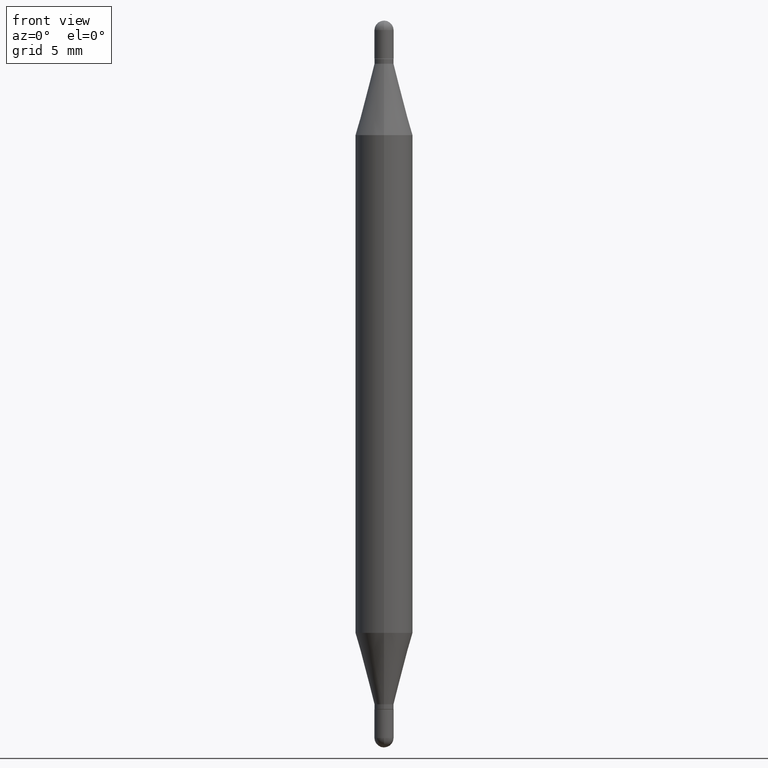
[diagram: clean part render]
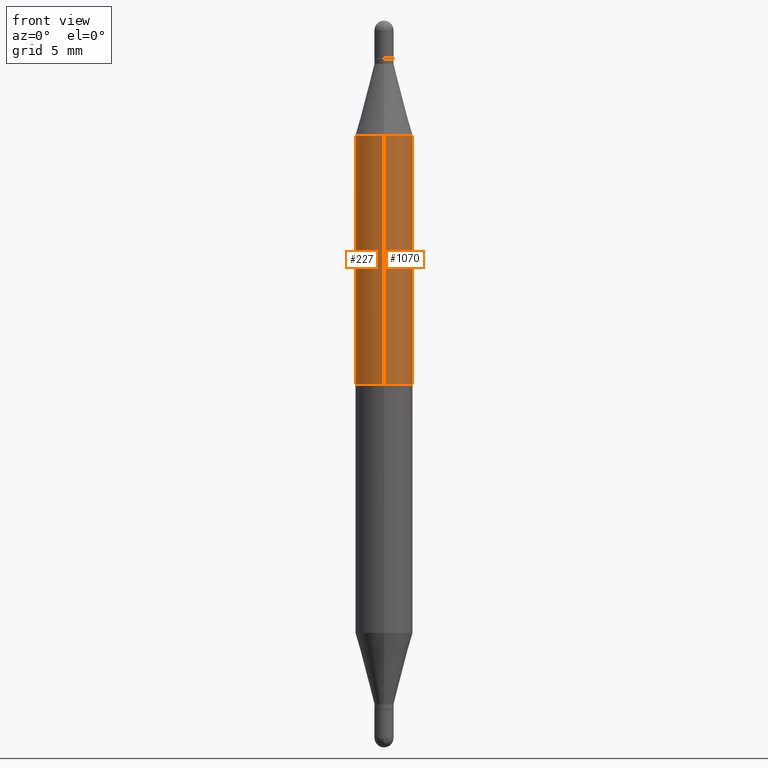
[diagram: same view with one multi-face feature highlighted, each face labeled with its STEP entity id]
A machine part, front view. The highlighted faces form ONE feature: a constant-radius fillet chain: 2 tangent blend faces with common blend radius 1.4999 mm. The faces share edges in the B-rep.
Their STEP definitions:
[1] entity #227 (Cylinder):
#8 = ORIENTED_EDGE ( 'NONE', *, *, #261, .F. ) ;
#16 = VERTEX_POINT ( 'NONE', #981 ) ;
#105 = EDGE_CURVE ( 'NONE', #16, #559, #532, .T. ) ;
#152 = CARTESIAN_POINT ( 'NONE',  ( 4.051124067684336187E-16, 0.05904999999999741012, -0.7480500000000002148 ) ) ;
#186 = CARTESIAN_POINT ( 'NONE',  ( 4.051124067684398803E-16, 0.05904999999999917953, -0.2358561992778360206 ) ) ;
#212 = DIRECTION ( 'NONE',  ( -6.982962677686265922E-15, -1.000000000000000000, 4.626330217890367758E-15 ) ) ;
#227 = ADVANCED_FACE ( 'NONE', ( #741 ), #1089, .T. ) ;
#229 = CARTESIAN_POINT ( 'NONE',  ( 3.090770025373766700E-29, -8.168445195885310899E-16, -0.2358561992778358263 ) ) ;
#261 = EDGE_CURVE ( 'NONE', #686, #514, #591, .T. ) ;
#313 = DIRECTION ( 'NONE',  ( -6.982962677686265922E-15, -1.000000000000000000, 3.469747663417777002E-15 ) ) ;
#321 = CARTESIAN_POINT ( 'NONE',  ( 0.000000000000000000, -5.214728217544379106E-15, -1.496099999999999985 ) ) ;
#336 = EDGE_CURVE ( 'NONE', #686, #559, #1112, .T. ) ;
#340 = CARTESIAN_POINT ( 'NONE',  ( 4.051124067684090161E-16, 0.05904999999999480109, -1.496100000000000207 ) ) ;
#343 = DIRECTION ( 'NONE',  ( -2.452517539544845457E-29, -3.489708654337918810E-15, -1.000000000000000000 ) ) ;
#358 = AXIS2_PLACEMENT_3D ( 'NONE', #836, #403, #814 ) ;
#385 = DIRECTION ( 'NONE',  ( -2.452517539544845457E-29, -3.489708654337919205E-15, -1.000000000000000000 ) ) ;
#403 = DIRECTION ( 'NONE',  ( -0.000000000000000000, -3.485547902910486918E-15, -1.000000000000000000 ) ) ;
#406 = CARTESIAN_POINT ( 'NONE',  ( -4.123439461173430699E-16, -0.05905000000000081711, -0.2358561992778356042 ) ) ;
#451 = ORIENTED_EDGE ( 'NONE', *, *, #509, .F. ) ;
#509 = EDGE_CURVE ( 'NONE', #514, #16, #896, .T. ) ;
#514 = VERTEX_POINT ( 'NONE', #406 ) ;
#532 = CIRCLE ( 'NONE', #358, 0.05905000000000001914 ) ;
#536 = ORIENTED_EDGE ( 'NONE', *, *, #105, .F. ) ;
#559 = VERTEX_POINT ( 'NONE', #152 ) ;
#591 = CIRCLE ( 'NONE', #645, 0.05905000000000000526 ) ;
#617 = ORIENTED_EDGE ( 'NONE', *, *, #336, .T. ) ;
#645 = AXIS2_PLACEMENT_3D ( 'NONE', #229, #731, #313 ) ;
#666 = DIRECTION ( 'NONE',  ( -2.452517539544845457E-29, -3.489708654337918810E-15, -1.000000000000000000 ) ) ;
#686 = VERTEX_POINT ( 'NONE', #186 ) ;
#731 = DIRECTION ( 'NONE',  ( 2.452517539544845457E-29, 3.489708654337919205E-15, 1.000000000000000000 ) ) ;
#738 = VECTOR ( 'NONE', #343, 39.37007874015748143 ) ;
#741 = FACE_OUTER_BOUND ( 'NONE', #799, .T. ) ;
#799 = EDGE_LOOP ( 'NONE', ( #8, #617, #536, #451 ) ) ;
#814 = DIRECTION ( 'NONE',  ( 0.000000000000000000, 1.000000000000000000, -4.626330217890367758E-15 ) ) ;
#836 = CARTESIAN_POINT ( 'NONE',  ( 1.834605745456521604E-29, -2.604251658666898988E-15, -0.7480499999999999927 ) ) ;
#838 = CARTESIAN_POINT ( 'NONE',  ( -4.123439461173741313E-16, -0.05905000000000523025, -1.496099999999999541 ) ) ;
#896 = LINE ( 'NONE', #838, #957 ) ;
#957 = VECTOR ( 'NONE', #666, 39.37007874015748143 ) ;
#981 = CARTESIAN_POINT ( 'NONE',  ( -4.123439461173557410E-16, -0.05905000000000261429, -0.7480499999999996597 ) ) ;
#1085 = AXIS2_PLACEMENT_3D ( 'NONE', #321, #385, #212 ) ;
#1089 = CYLINDRICAL_SURFACE ( 'NONE', #1085, 0.05905000000000001914 ) ;
#1112 = LINE ( 'NONE', #340, #738 ) ;
[2] entity #1070 (Cylinder):
#5 = AXIS2_PLACEMENT_3D ( 'NONE', #135, #141, #638 ) ;
#16 = VERTEX_POINT ( 'NONE', #981 ) ;
#26 = FACE_OUTER_BOUND ( 'NONE', #983, .T. ) ;
#30 = CYLINDRICAL_SURFACE ( 'NONE', #647, 0.05905000000000001914 ) ;
#135 = CARTESIAN_POINT ( 'NONE',  ( 3.090770025373766700E-29, -8.168445195885310899E-16, -0.2358561992778358263 ) ) ;
#141 = DIRECTION ( 'NONE',  ( 2.452517539544845457E-29, 3.489708654337919205E-15, 1.000000000000000000 ) ) ;
#152 = CARTESIAN_POINT ( 'NONE',  ( 4.051124067684336187E-16, 0.05904999999999741012, -0.7480500000000002148 ) ) ;
#181 = ORIENTED_EDGE ( 'NONE', *, *, #336, .F. ) ;
#186 = CARTESIAN_POINT ( 'NONE',  ( 4.051124067684398803E-16, 0.05904999999999917953, -0.2358561992778360206 ) ) ;
#228 = CIRCLE ( 'NONE', #302, 0.05905000000000001914 ) ;
#302 = AXIS2_PLACEMENT_3D ( 'NONE', #1024, #949, #583 ) ;
#336 = EDGE_CURVE ( 'NONE', #686, #559, #1112, .T. ) ;
#340 = CARTESIAN_POINT ( 'NONE',  ( 4.051124067684090161E-16, 0.05904999999999480109, -1.496100000000000207 ) ) ;
#343 = DIRECTION ( 'NONE',  ( -2.452517539544845457E-29, -3.489708654337918810E-15, -1.000000000000000000 ) ) ;
#367 = CARTESIAN_POINT ( 'NONE',  ( 0.000000000000000000, -5.214728217544379106E-15, -1.496099999999999985 ) ) ;
#406 = CARTESIAN_POINT ( 'NONE',  ( -4.123439461173430699E-16, -0.05905000000000081711, -0.2358561992778356042 ) ) ;
#483 = ORIENTED_EDGE ( 'NONE', *, *, #947, .F. ) ;
#484 = CIRCLE ( 'NONE', #5, 0.05905000000000000526 ) ;
#509 = EDGE_CURVE ( 'NONE', #514, #16, #896, .T. ) ;
#514 = VERTEX_POINT ( 'NONE', #406 ) ;
#542 = ORIENTED_EDGE ( 'NONE', *, *, #614, .F. ) ;
#559 = VERTEX_POINT ( 'NONE', #152 ) ;
#583 = DIRECTION ( 'NONE',  ( 0.000000000000000000, 1.000000000000000000, -4.626330217890367758E-15 ) ) ;
#614 = EDGE_CURVE ( 'NONE', #559, #16, #228, .T. ) ;
#638 = DIRECTION ( 'NONE',  ( -6.982962677686265922E-15, -1.000000000000000000, 3.469747663417777002E-15 ) ) ;
#647 = AXIS2_PLACEMENT_3D ( 'NONE', #367, #712, #1063 ) ;
#666 = DIRECTION ( 'NONE',  ( -2.452517539544845457E-29, -3.489708654337918810E-15, -1.000000000000000000 ) ) ;
#686 = VERTEX_POINT ( 'NONE', #186 ) ;
#712 = DIRECTION ( 'NONE',  ( -2.452517539544845457E-29, -3.489708654337919205E-15, -1.000000000000000000 ) ) ;
#738 = VECTOR ( 'NONE', #343, 39.37007874015748143 ) ;
#753 = ORIENTED_EDGE ( 'NONE', *, *, #509, .T. ) ;
#838 = CARTESIAN_POINT ( 'NONE',  ( -4.123439461173741313E-16, -0.05905000000000523025, -1.496099999999999541 ) ) ;
#896 = LINE ( 'NONE', #838, #957 ) ;
#947 = EDGE_CURVE ( 'NONE', #514, #686, #484, .T. ) ;
#949 = DIRECTION ( 'NONE',  ( -0.000000000000000000, -3.485547902910486918E-15, -1.000000000000000000 ) ) ;
#957 = VECTOR ( 'NONE', #666, 39.37007874015748143 ) ;
#981 = CARTESIAN_POINT ( 'NONE',  ( -4.123439461173557410E-16, -0.05905000000000261429, -0.7480499999999996597 ) ) ;
#983 = EDGE_LOOP ( 'NONE', ( #181, #483, #753, #542 ) ) ;
#1024 = CARTESIAN_POINT ( 'NONE',  ( 1.834605745456521604E-29, -2.604251658666898988E-15, -0.7480499999999999927 ) ) ;
#1063 = DIRECTION ( 'NONE',  ( -6.982962677686265922E-15, -1.000000000000000000, 4.626330217890367758E-15 ) ) ;
#1070 = ADVANCED_FACE ( 'NONE', ( #26 ), #30, .T. ) ;
#1112 = LINE ( 'NONE', #340, #738 ) ;